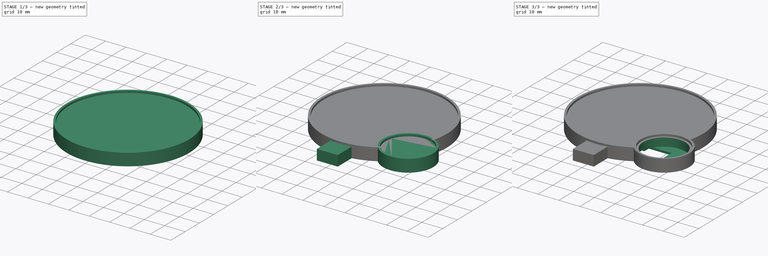
[diagram: build sequence overview — one tinted view per stage of 3, left to right]
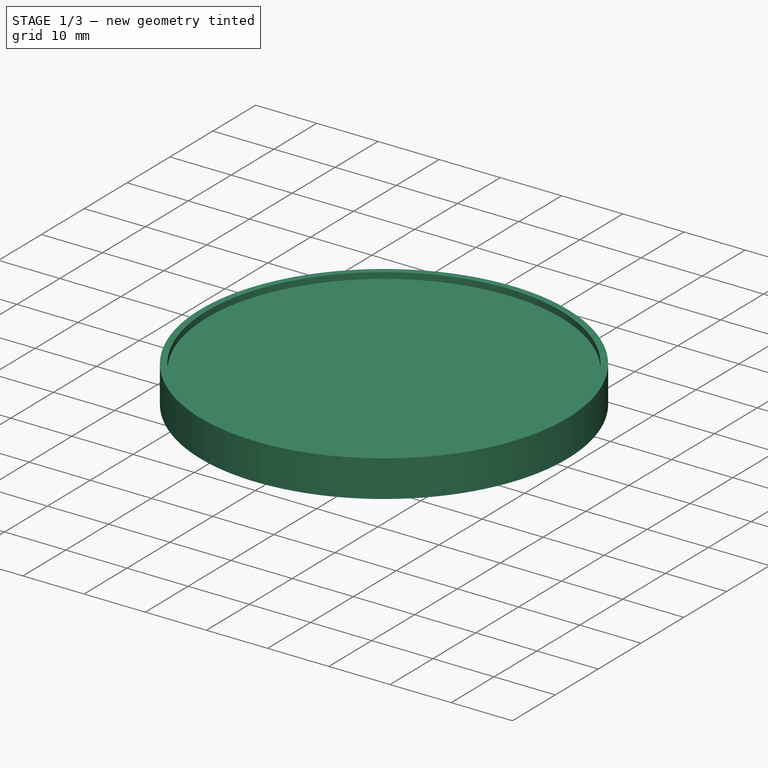
[diagram: stage 1 of 3 — iso view after this stage's code; geometry added in this stage tinted green]
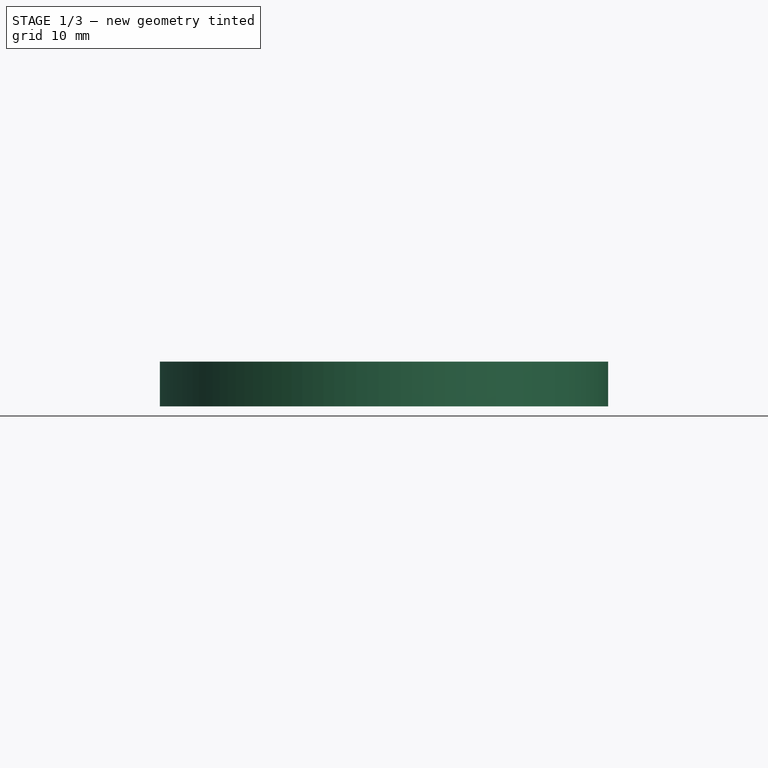
[diagram: stage 1 of 3 — front view after this stage's code; geometry added in this stage tinted green]
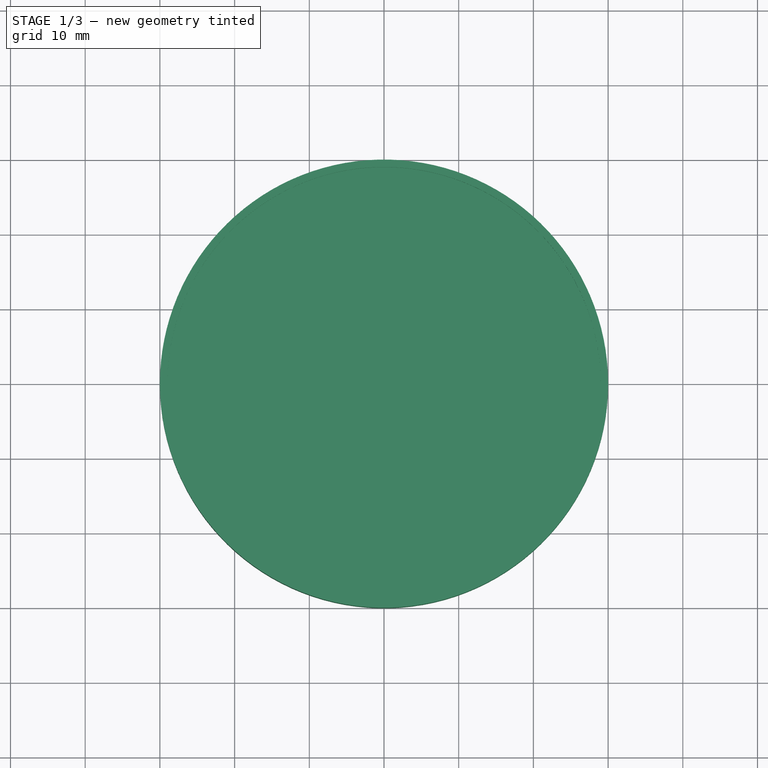
[diagram: stage 1 of 3 — top view after this stage's code; geometry added in this stage tinted green]
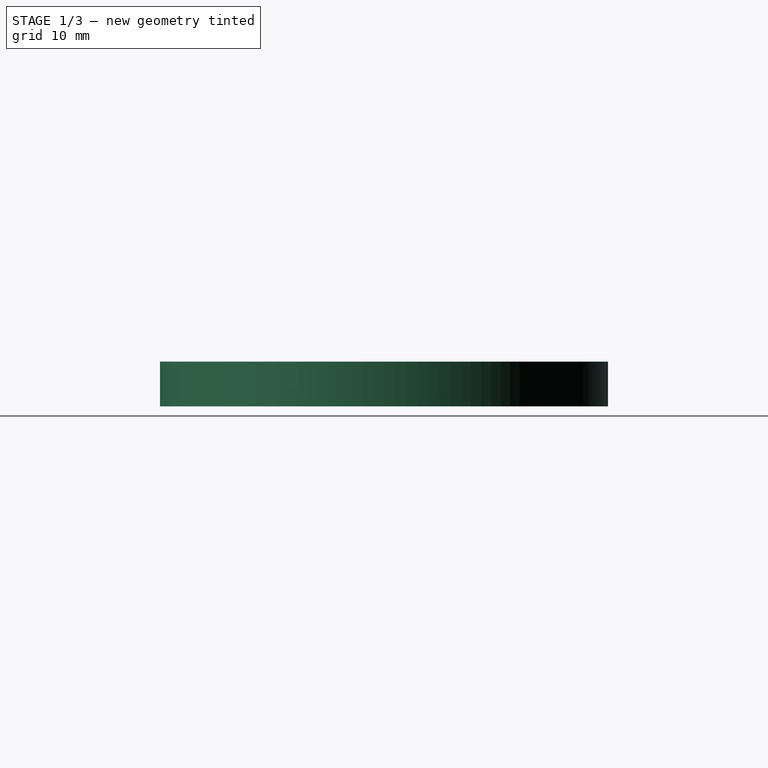
[diagram: stage 1 of 3 — right view after this stage's code; geometry added in this stage tinted green]
FCSTD DOCUMENT  (FreeCAD 0.18R16117 (Git))
Label: avatar
License: All rights reserved
LicenseURL: http://en.wikipedia.org/wiki/All_rights_reserved
objects: Sketcher::SketchObject×7, PartDesign::Pocket×4, PartDesign::Pad×3, PartDesign::Body×1
note: 22 computed .brp shape members not serialized (recipe doc carries the construction recipe); baked Part::Feature solids carry a one-line shape summary decoded from their .brp

FEATURE [Sketcher::SketchObject] Sketch
  MapMode = 5
  Support = -> [XY_Plane]
  sketch-geometry (1):
    g0: Circle CenterX=0 CenterY=0 CenterZ=0 NormalX=0 NormalY=0 NormalZ=1 AngleXU=0 Radius=30
  constraints (2):
    c: Coincident(g0,g-1)
    c: Radius(g0) = 30
FEATURE [Sketcher::SketchObject] Sketch002
  MapMode = 5
  Support = -> [XY_Plane]
  sketch-geometry (3):
    g0: Circle CenterX=24 CenterY=-18 CenterZ=0 NormalX=0 NormalY=0 NormalZ=1 AngleXU=0 Radius=12
    g1: LineSegment [constr] StartX=24 StartY=-18 StartZ=0 EndX=0 EndY=0 EndZ=0
    g2: LineSegment [constr] StartX=0 StartY=-30 StartZ=0 EndX=24 EndY=-30 EndZ=0
  constraints (7):
    c: Coincident(g1,g0)
    c: Coincident(g1,g-1)
    c: Radius(g0) = 12
    c: Horizontal(g2)
    c: PointOnObject(g2,g-2)
    c: PointOnObject(g2,g0)
    c: DistanceX(g0,g2) = 0
FEATURE [Sketcher::SketchObject] Sketch005
  MapMode = 5
  Placement = pos=(0,0,0) rot=(1,0,0;3.14159rad)
  sketch-geometry (12):
    g0: LineSegment [constr] StartX=24 StartY=18 StartZ=0 EndX=13.0913 EndY=18 EndZ=0
    g1: LineSegment StartX=13.0913 StartY=23 StartZ=0 EndX=24 EndY=23 EndZ=0
    g2: LineSegment StartX=24 StartY=23 StartZ=0 EndX=24 EndY=13 EndZ=0
    g3: LineSegment StartX=24 StartY=13 StartZ=0 EndX=13.0913 EndY=13 EndZ=0
    g4: LineSegment StartX=13.0913 StartY=20 StartZ=0 EndX=2 EndY=20 EndZ=0
    g5: LineSegment StartX=0 StartY=16 StartZ=0 EndX=13.0913 EndY=16 EndZ=0
    g6: LineSegment StartX=-2 StartY=34.5804 StartZ=0 EndX=2 EndY=34.5804 EndZ=0
    g7: LineSegment StartX=0 StartY=16 StartZ=0 EndX=-2 EndY=16 EndZ=0
    g8: LineSegment StartX=-2 StartY=16 StartZ=0 EndX=-2 EndY=34.5804 EndZ=0
    g9: LineSegment StartX=2 StartY=34.5804 StartZ=0 EndX=2 EndY=20 EndZ=0
    g10: LineSegment StartX=13.0913 StartY=23 StartZ=0 EndX=13.0913 EndY=20 EndZ=0
    g11: LineSegment StartX=13.0913 StartY=16 StartZ=0 EndX=13.0913 EndY=13 EndZ=0
  constraints (31):
    c: Horizontal(g0)
    c: Coincident(g1,g2)
    c: Coincident(g2,g3)
    c: Horizontal(g1)
    c: Horizontal(g3)
    c: Vertical(g2)
    c: PointOnObject(g0,g2)
    c: Symmetric(g3,g1,g0)
    c: DistanceY(g3,g1) = 10
    c: Horizontal(g4)
    c: Horizontal(g5)
    c: PointOnObject(g5,g-2)
    c: Symmetric(g4,g5,g0)
    c: DistanceY(g5,g4) = 4
    c: Coincident(g7,g8)
    c: Coincident(g8,g6)
    c: Horizontal(g6)
    c: Horizontal(g7)
    c: Vertical(g8)
    c: Coincident(g9,g6)
    c: Coincident(g9,g4)
    c: Vertical(g9)
    c: Coincident(g10,g1)
    c: Coincident(g10,g4)
    c: Vertical(g10)
    c: Coincident(g11,g5)
    c: Coincident(g11,g3)
    c: DistanceX(g-1,g4) = 2
    c: Coincident(g5,g7)
    c: DistanceX(g7,g-1) = 2
    c: DistanceX(g5,g4) = 0
FEATURE [Sketcher::SketchObject] Sketch007
  ExternalGeometry = -> [Sketch]
  sketch-geometry (4):
    g0: LineSegment StartX=-5 StartY=-29.5804 StartZ=0 EndX=5 EndY=-29.5804 EndZ=0
    g1: LineSegment StartX=5 StartY=-29.5804 StartZ=0 EndX=5 EndY=-39.0804 EndZ=0
    g2: LineSegment StartX=5 StartY=-39.0804 StartZ=0 EndX=-5 EndY=-39.0804 EndZ=0
    g3: LineSegment StartX=-5 StartY=-39.0804 StartZ=0 EndX=-5 EndY=-29.5804 EndZ=0
  constraints (12):
    c: Coincident(g0,g1)
    c: Coincident(g1,g2)
    c: Coincident(g2,g3)
    c: Coincident(g3,g0)
    c: Horizontal(g0)
    c: Horizontal(g2)
    c: Vertical(g1)
    c: Vertical(g3)
    c: PointOnObject(g0,g-3)
    c: DistanceX(g2,g2) = 10
    c: PointOnObject(g0,g-3)
    c: DistanceY(g3,g3) = 9.5
FEATURE [PartDesign::Pad] Pad
  Length = 6
  Length2 = 100
  Profile = -> Sketch
  Type = 0
FEATURE [Sketcher::SketchObject] Sketch006
  MapMode = 5
  Placement = pos=(0,0,6) rot=(0,0,1;0rad)
  Support = -> [Pad]
  sketch-geometry (1):
    g0: Circle CenterX=0 CenterY=0 CenterZ=0 NormalX=0 NormalY=0 NormalZ=1 AngleXU=0 Radius=29
  constraints (2):
    c: Radius(g0) = 29
    c: Coincident(g0,g-1)
FEATURE [PartDesign::Pocket] Pocket
  BaseFeature = -> Pad
  Length = 1
  Length2 = 100
  Profile = -> Sketch006
  Type = 0
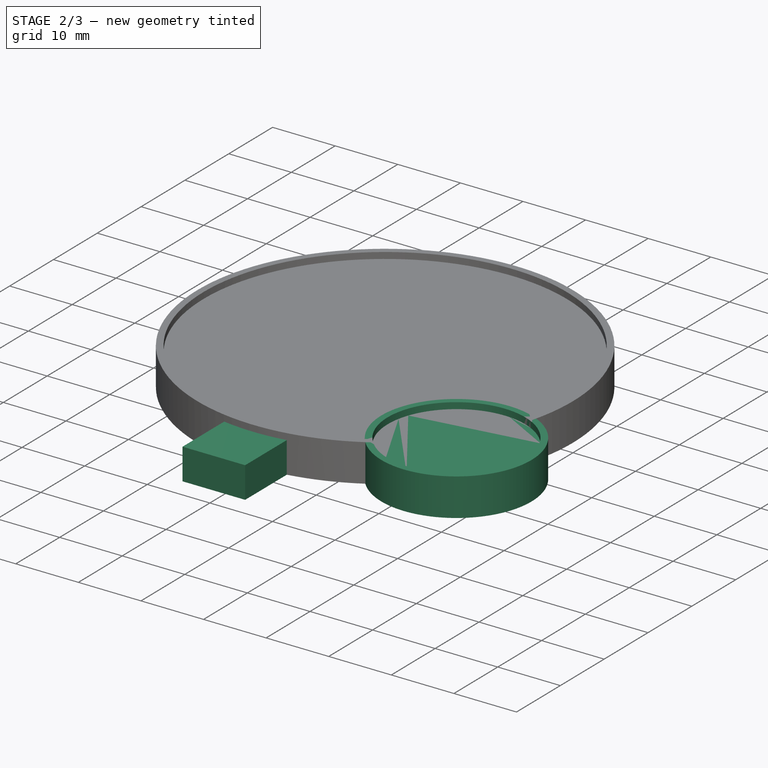
[diagram: stage 2 of 3 — iso view after this stage's code; geometry added in this stage tinted green]
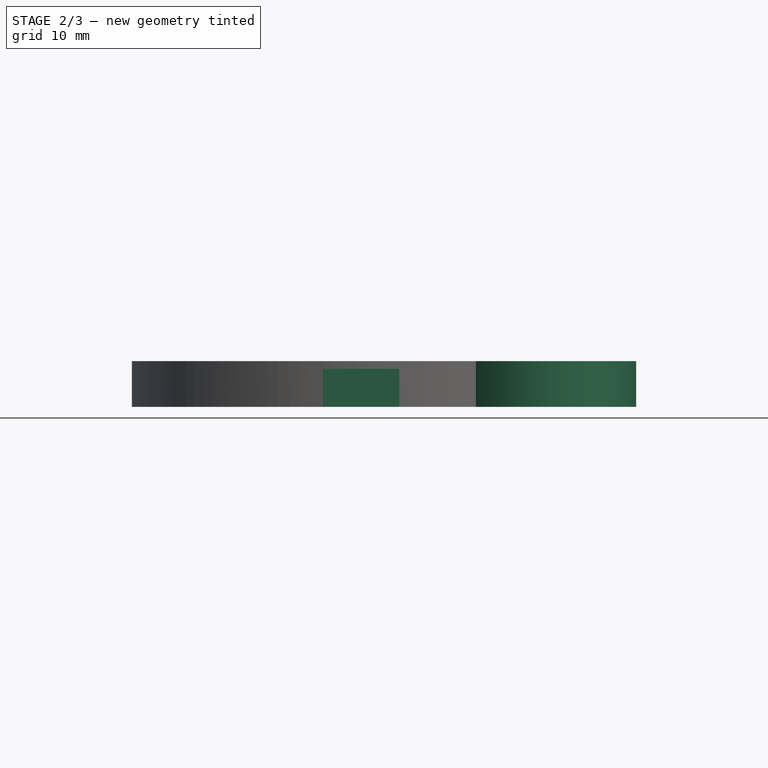
[diagram: stage 2 of 3 — front view after this stage's code; geometry added in this stage tinted green]
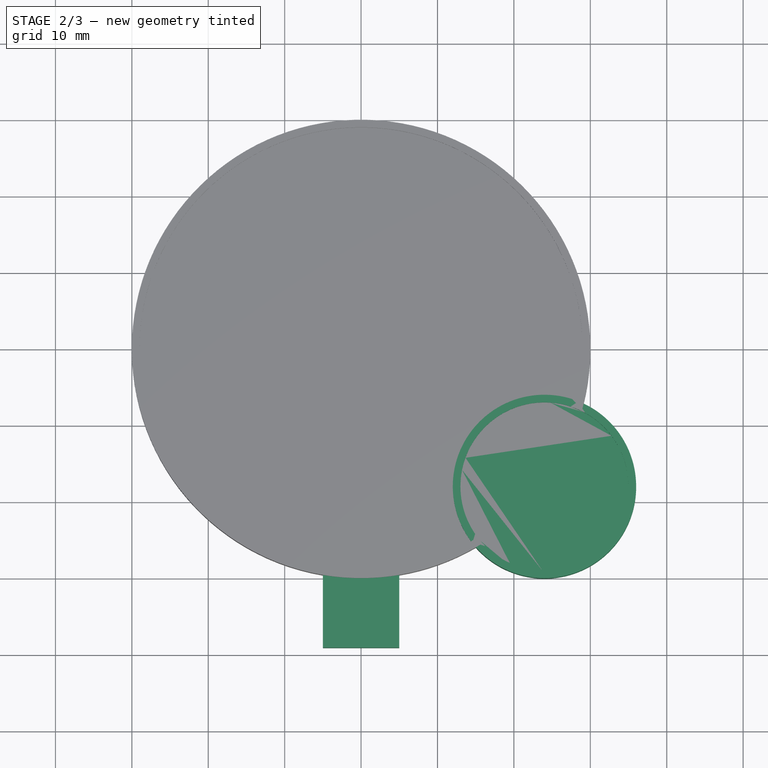
[diagram: stage 2 of 3 — top view after this stage's code; geometry added in this stage tinted green]
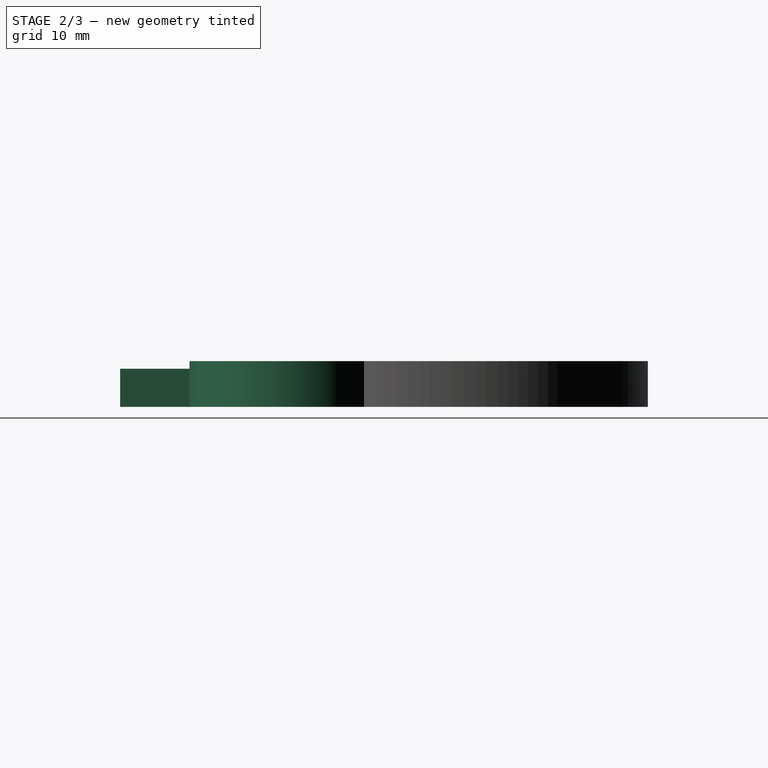
[diagram: stage 2 of 3 — right view after this stage's code; geometry added in this stage tinted green]
FEATURE [PartDesign::Pad] Pad001
  BaseFeature = -> Pocket
  Length = 5
  Length2 = 100
  Profile = -> Sketch007
  Type = 0
FEATURE [PartDesign::Pad] Pad002
  BaseFeature = -> Pad001
  Length = 6
  Length2 = 100
  Profile = -> Sketch002
  Type = 0
FEATURE [Sketcher::SketchObject] Sketch003
  MapMode = 5
  Placement = pos=(0,0,6) rot=(0,0,1;0rad)
  Support = -> [Pad002]
  sketch-geometry (1):
    g0: Circle CenterX=24 CenterY=-18 CenterZ=0 NormalX=0 NormalY=0 NormalZ=1 AngleXU=0 Radius=11
  constraints (1):
    c: Radius(g0) = 11
FEATURE [PartDesign::Pocket] Pocket001
  BaseFeature = -> Pad002
  Length = 1
  Length2 = 100
  Profile = -> Sketch003
  Type = 0
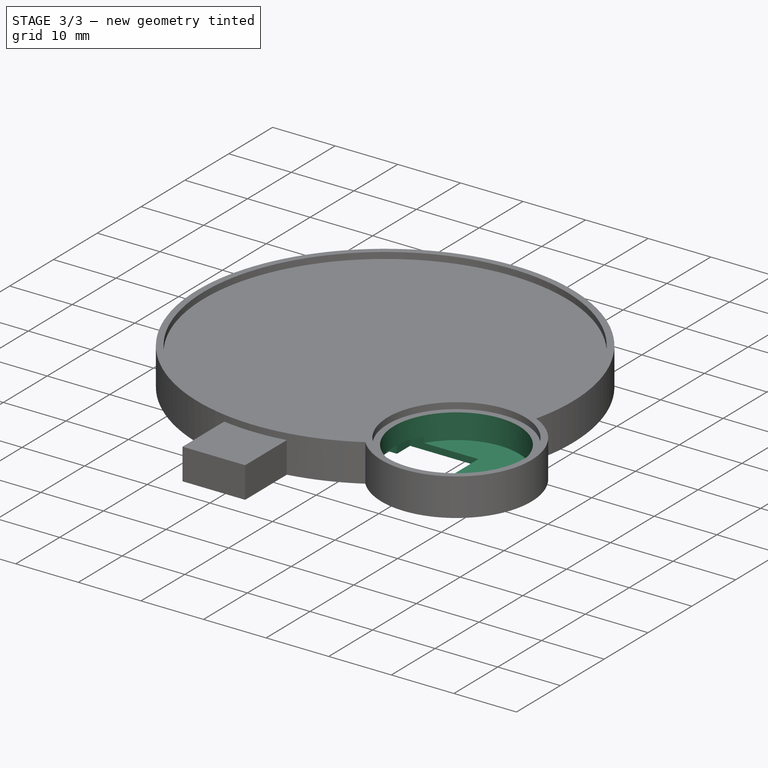
[diagram: stage 3 of 3 — iso view after this stage's code; geometry added in this stage tinted green]
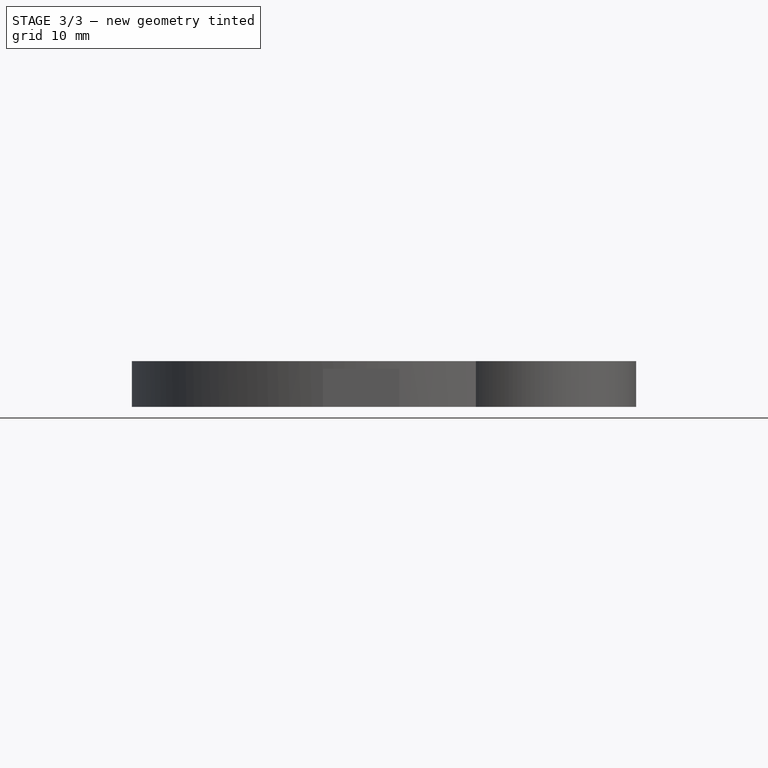
[diagram: stage 3 of 3 — front view after this stage's code; geometry added in this stage tinted green]
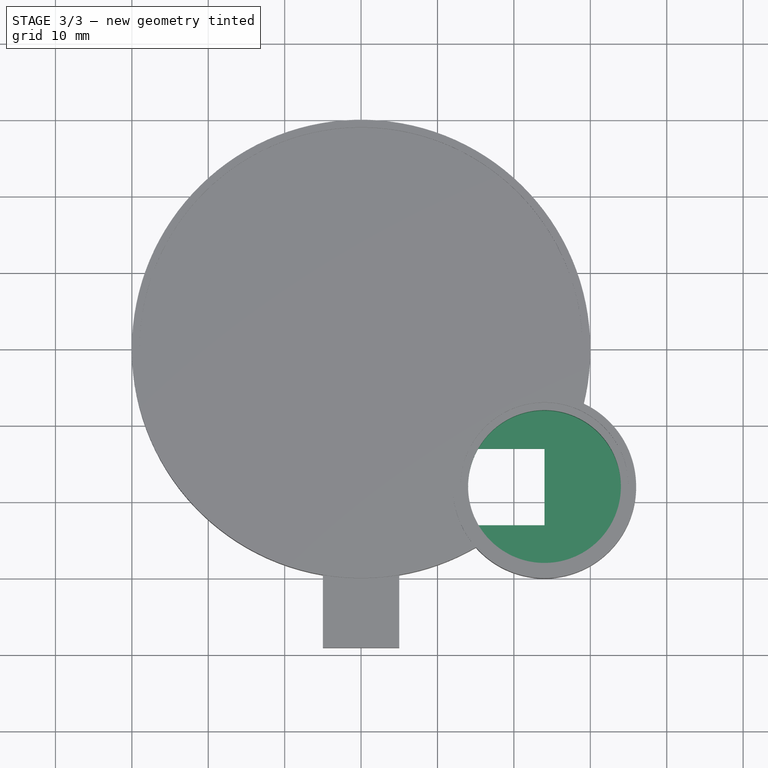
[diagram: stage 3 of 3 — top view after this stage's code; geometry added in this stage tinted green]
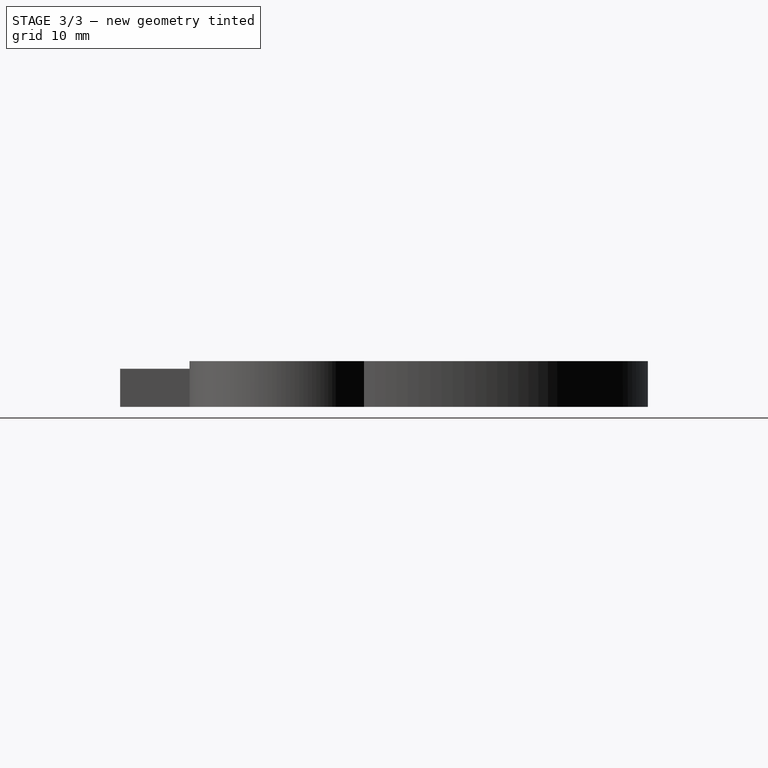
[diagram: stage 3 of 3 — right view after this stage's code; geometry added in this stage tinted green]
FEATURE [Sketcher::SketchObject] Sketch004
  MapMode = 5
  Placement = pos=(0,0,5) rot=(0,0,1;0rad)
  Support = -> [Pocket001]
  sketch-geometry (1):
    g0: Circle CenterX=24 CenterY=-18 CenterZ=0 NormalX=0 NormalY=0 NormalZ=1 AngleXU=0 Radius=10
  constraints (1):
    c: Radius(g0) = 10
FEATURE [PartDesign::Pocket] Pocket002
  BaseFeature = -> Pocket001
  Length = 4
  Length2 = 100
  Profile = -> Sketch004
  Type = 0
FEATURE [PartDesign::Pocket] Pocket003
  BaseFeature = -> Pocket002
  Length = 2
  Length2 = 100
  Profile = -> Sketch005
  Type = 0
FEATURE [PartDesign::Body] Body
  Group = -> [Sketch,Sketch002,Sketch003,Sketch004,Sketch005,Sketch006,Sketch007,Pad,Pocket,Pad001,Pad002,Pocket001,Pocket002,Pocket003]
  Origin = -> Origin
  Tip = -> Pocket003
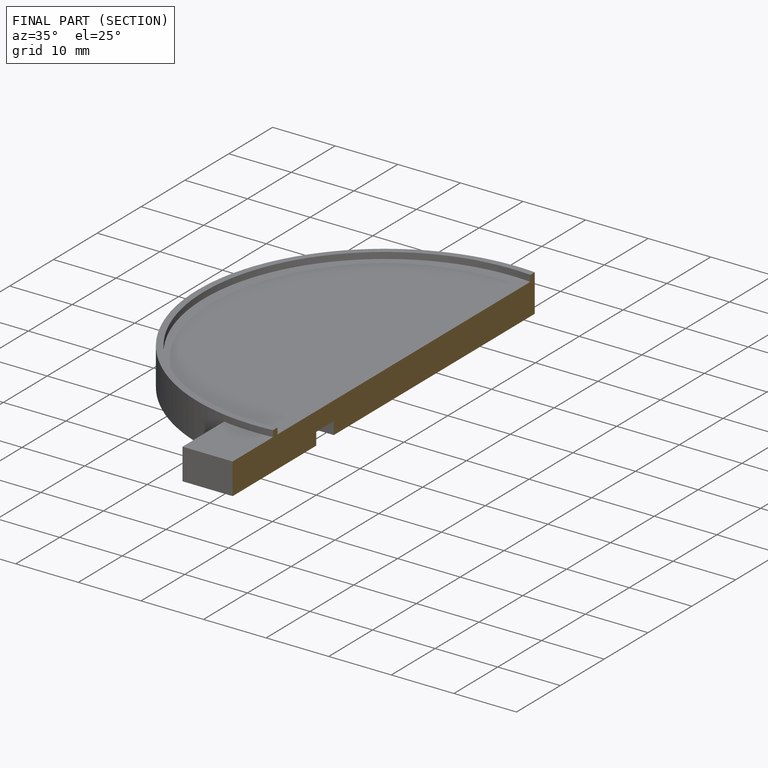
[diagram: finished part — half-section view (interior)]
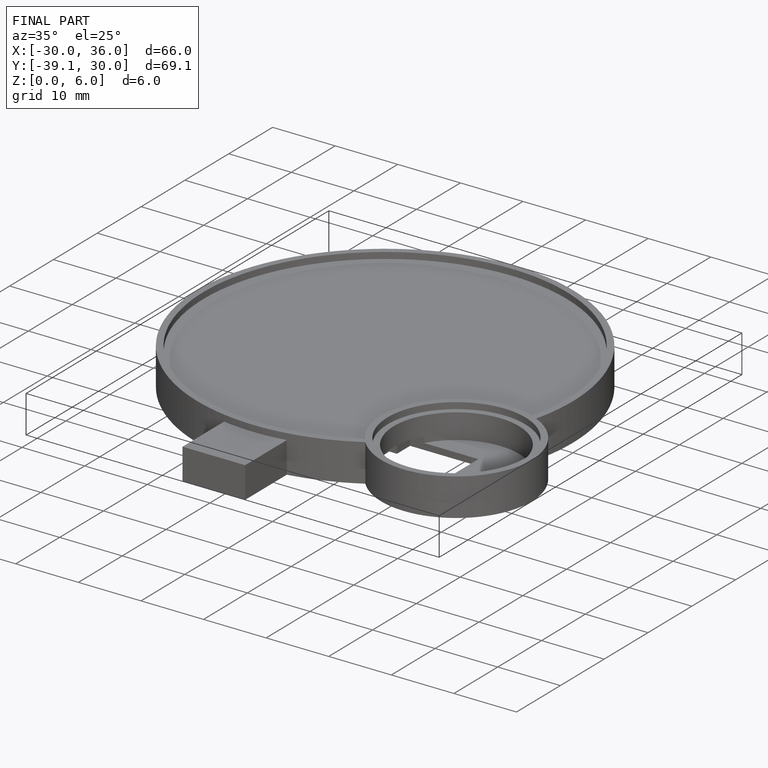
[diagram: finished part — iso view with bounding-box wireframe]
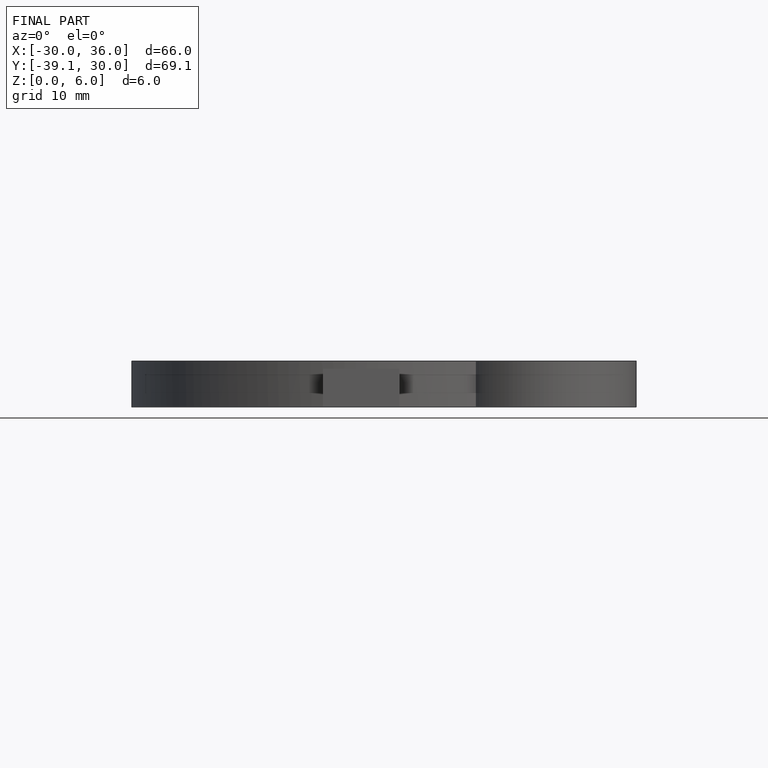
[diagram: finished part — front view with bounding-box wireframe]
